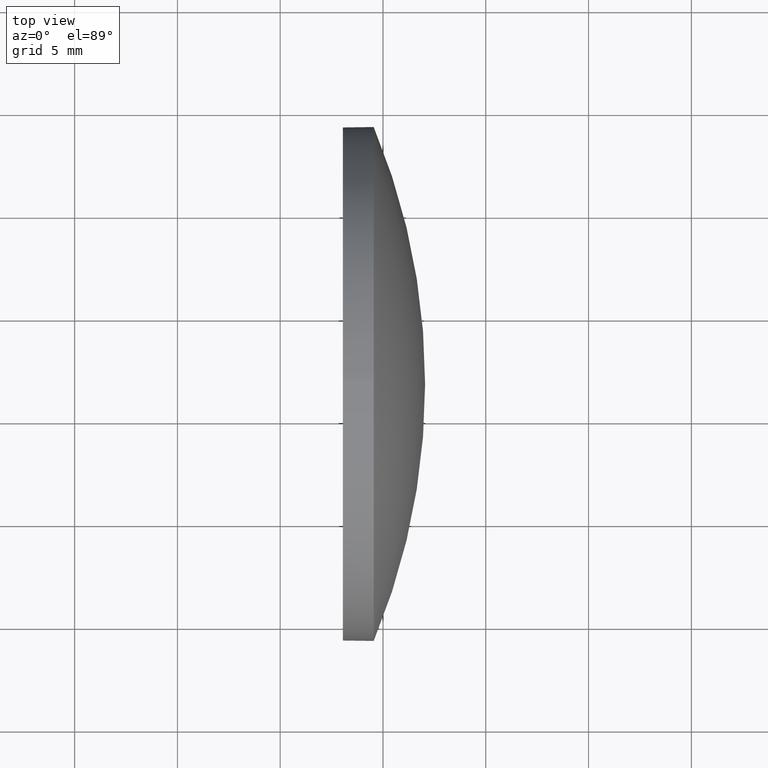
[diagram: clean part render]
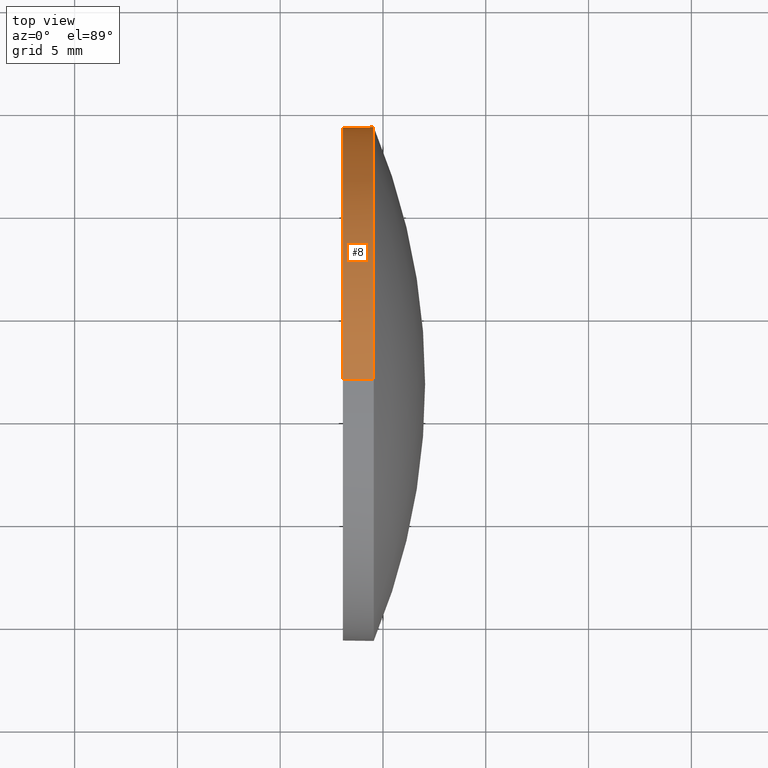
[diagram: same view with one face highlighted and labeled with its STEP entity id]
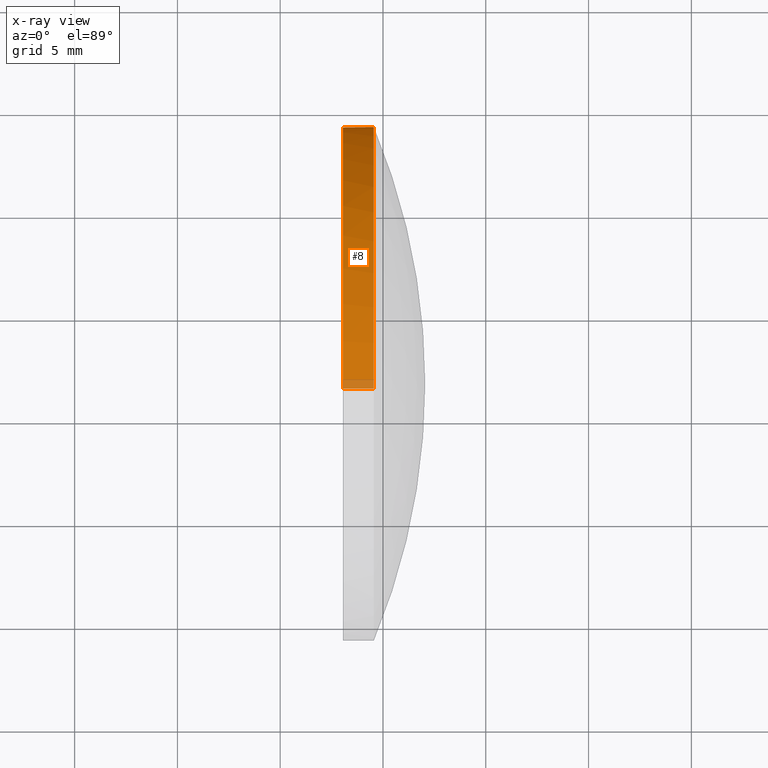
[diagram: x-ray of the same camera — body ghosted, the highlighted face saturated]
A machine part, top view. The second image highlights one B-rep face of the part: STEP entity #8.
The next image is the same camera in x-ray: the body ghosted, the highlighted face saturated — about 3% of this face is hidden behind the body in this view.
In plain terms, the highlighted cylindrical surface (partial cylindrical patch) has radius 12.5 mm, axis along (-1, -0, -0).
Its self-contained STEP definition (entity closure, byte-faithful):
#4 = CARTESIAN_POINT ( 'NONE',  ( 669.5488725703303300, 221.7118161881164700, 0.0000000000000000000 ) ) ;
#8 = ADVANCED_FACE ( 'NONE', ( #119 ), #76, .T. ) ;
#15 = ORIENTED_EDGE ( 'NONE', *, *, #79, .F. ) ;
#16 = ORIENTED_EDGE ( 'NONE', *, *, #24, .T. ) ;
#23 = DIRECTION ( 'NONE',  ( -1.000000000000000000, -0.0000000000000000000, -0.0000000000000000000 ) ) ;
#24 = EDGE_CURVE ( 'NONE', #52, #165, #154, .T. ) ;
#28 = EDGE_CURVE ( 'NONE', #161, #52, #109, .T. ) ;
#30 = ORIENTED_EDGE ( 'NONE', *, *, #28, .T. ) ;
#33 = DIRECTION ( 'NONE',  ( 0.0000000000000000000, 0.0000000000000000000, 1.000000000000000000 ) ) ;
#34 = DIRECTION ( 'NONE',  ( -1.000000000000000000, -0.0000000000000000000, -0.0000000000000000000 ) ) ;
#43 = EDGE_LOOP ( 'NONE', ( #16, #115, #148, #15, #30 ) ) ;
#52 = VERTEX_POINT ( 'NONE', #89 ) ;
#59 = EDGE_CURVE ( 'NONE', #165, #176, #140, .T. ) ;
#62 = DIRECTION ( 'NONE',  ( 0.0000000000000000000, 0.0000000000000000000, 1.000000000000000000 ) ) ;
#63 = VECTOR ( 'NONE', #23, 1000.000000000000000 ) ;
#69 = CARTESIAN_POINT ( 'NONE',  ( 669.5488725703303300, 221.7118161881164700, 0.0000000000000000000 ) ) ;
#71 = AXIS2_PLACEMENT_3D ( 'NONE', #133, #149, #147 ) ;
#74 = CIRCLE ( 'NONE', #116, 12.49999999999998400 ) ;
#76 = CYLINDRICAL_SURFACE ( 'NONE', #71, 12.49999999999998400 ) ;
#77 = CARTESIAN_POINT ( 'NONE',  ( 668.0488725703303300, 221.7118161881164700, 0.0000000000000000000 ) ) ;
#79 = EDGE_CURVE ( 'NONE', #161, #169, #186, .T. ) ;
#83 = AXIS2_PLACEMENT_3D ( 'NONE', #4, #87, #33 ) ;
#87 = DIRECTION ( 'NONE',  ( -1.000000000000000000, -0.0000000000000000000, -0.0000000000000000000 ) ) ;
#89 = CARTESIAN_POINT ( 'NONE',  ( 669.5488725703303300, 234.2118161881164200, 0.0000000000000000000 ) ) ;
#94 = CARTESIAN_POINT ( 'NONE',  ( 669.5488725703303300, 221.7118161881164700, 12.49999999999998400 ) ) ;
#109 = CIRCLE ( 'NONE', #83, 12.49999999999998400 ) ;
#111 = CARTESIAN_POINT ( 'NONE',  ( 668.0488725703303300, 221.7118161881164700, 12.49999999999998400 ) ) ;
#115 = ORIENTED_EDGE ( 'NONE', *, *, #59, .T. ) ;
#116 = AXIS2_PLACEMENT_3D ( 'NONE', #77, #153, #62 ) ;
#119 = FACE_OUTER_BOUND ( 'NONE', #43, .T. ) ;
#123 = CARTESIAN_POINT ( 'NONE',  ( 669.5488725703303300, 221.7118161881164700, -12.49999999999998400 ) ) ;
#133 = CARTESIAN_POINT ( 'NONE',  ( 644.5807476027708800, 221.7118161881164700, 0.0000000000000000000 ) ) ;
#137 = CARTESIAN_POINT ( 'NONE',  ( 668.0488725703303300, 221.7118161881164700, -12.49999999999998400 ) ) ;
#140 = LINE ( 'NONE', #177, #168 ) ;
#147 = DIRECTION ( 'NONE',  ( 0.0000000000000000000, 0.0000000000000000000, 1.000000000000000000 ) ) ;
#148 = ORIENTED_EDGE ( 'NONE', *, *, #172, .F. ) ;
#149 = DIRECTION ( 'NONE',  ( -1.000000000000000000, -0.0000000000000000000, -0.0000000000000000000 ) ) ;
#153 = DIRECTION ( 'NONE',  ( -1.000000000000000000, -0.0000000000000000000, -0.0000000000000000000 ) ) ;
#154 = CIRCLE ( 'NONE', #166, 12.49999999999998400 ) ;
#161 = VERTEX_POINT ( 'NONE', #94 ) ;
#163 = DIRECTION ( 'NONE',  ( 0.0000000000000000000, 0.0000000000000000000, 1.000000000000000000 ) ) ;
#165 = VERTEX_POINT ( 'NONE', #123 ) ;
#166 = AXIS2_PLACEMENT_3D ( 'NONE', #69, #174, #163 ) ;
#168 = VECTOR ( 'NONE', #34, 1000.000000000000000 ) ;
#169 = VERTEX_POINT ( 'NONE', #111 ) ;
#172 = EDGE_CURVE ( 'NONE', #169, #176, #74, .T. ) ;
#174 = DIRECTION ( 'NONE',  ( -1.000000000000000000, -0.0000000000000000000, -0.0000000000000000000 ) ) ;
#176 = VERTEX_POINT ( 'NONE', #137 ) ;
#177 = CARTESIAN_POINT ( 'NONE',  ( 644.5807476027708800, 221.7118161881164700, -12.49999999999998400 ) ) ;
#179 = CARTESIAN_POINT ( 'NONE',  ( 644.5807476027708800, 221.7118161881164700, 12.49999999999998400 ) ) ;
#186 = LINE ( 'NONE', #179, #63 ) ;